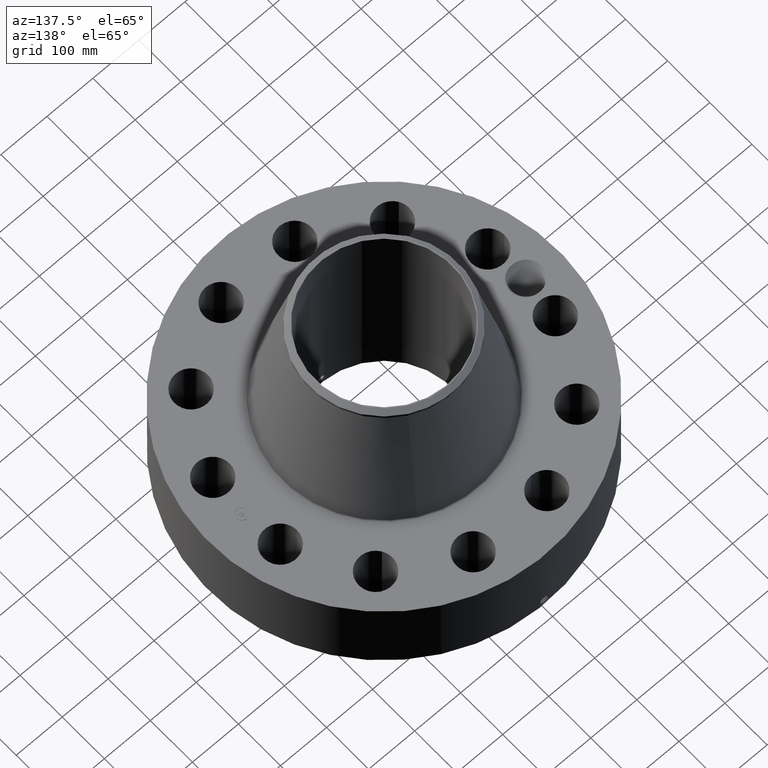
[diagram: clean part render]
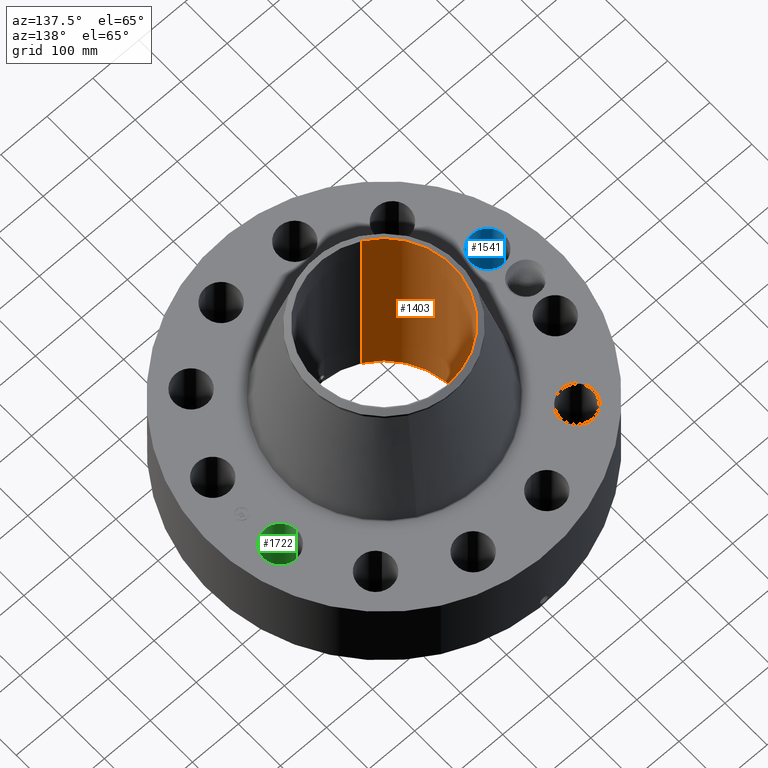
[diagram: same view with three faces highlighted in distinct colors, each labeled with its STEP entity id]
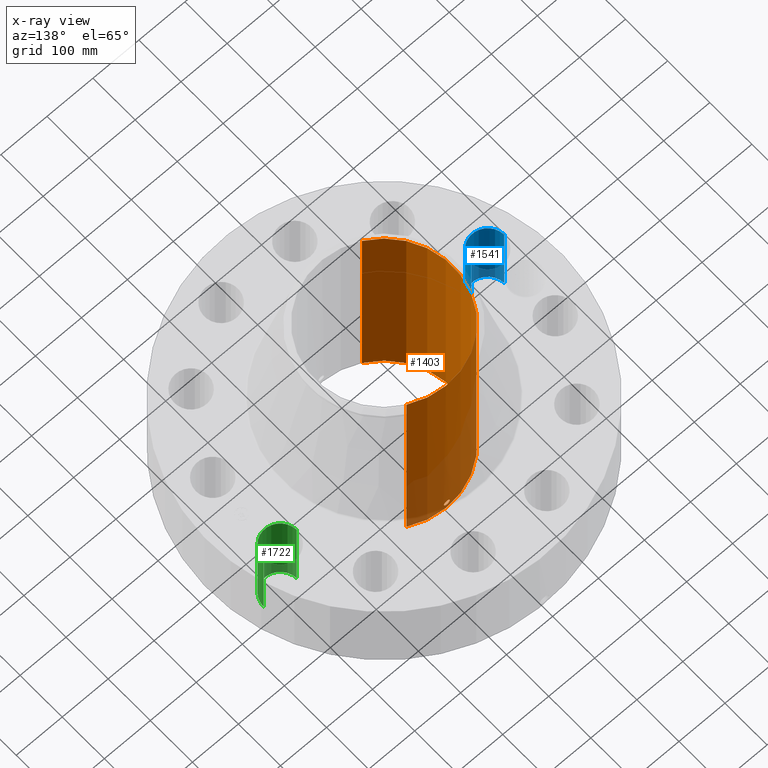
[diagram: x-ray of the same camera — body ghosted, the three highlighted faces saturated]
A machine part, auxiliary view with three faces highlighted in distinct colors.
The next image is the same camera in x-ray (body ghosted, the three faces saturated) — at least one of them is partly hidden behind the body in this view.
Their STEP definitions:

[orange] entity #1403 — the highlighted cylindrical surface (partial cylindrical patch) has radius 149.225 mm, axis along (0, 0, -1).
#269=AXIS2_PLACEMENT_3D('Circle Axis2P3D',#267,#268,$) ;
#1280=AXIS2_PLACEMENT_3D('Cylinder Axis2P3D',#1277,#1278,#1279) ;
#1352=AXIS2_PLACEMENT_3D('Circle Axis2P3D',#1350,#1351,$) ;
#262=CARTESIAN_POINT('Vertex',(2.81662503931,5.15579755113,0.250000000001)) ;
#264=CARTESIAN_POINT('Vertex',(-2.81662503931,-5.15579755113,0.250000000001)) ;
#267=CARTESIAN_POINT('Axis2P3D Location',(0.,0.,0.250000000001)) ;
#1277=CARTESIAN_POINT('Axis2P3D Location',(0.,0.,9.37500000004)) ;
#1286=CARTESIAN_POINT('Vertex',(2.81662503931,5.15579755113,18.5000000001)) ;
#1288=CARTESIAN_POINT('Vertex',(-2.81662503931,-5.15579755113,18.5000000001)) ;
#1291=CARTESIAN_POINT('Line Origine',(2.81662503931,5.15579755113,9.37500000004)) ;
#1296=CARTESIAN_POINT('Line Origine',(-2.81662503931,-5.15579755113,9.37500000004)) ;
#1350=CARTESIAN_POINT('Axis2P3D Location',(0.,0.,18.5000000001)) ;
#1362=CARTESIAN_POINT('Control Point',(0.219395640473,5.87090202211,1.05985638466)) ;
#1363=CARTESIAN_POINT('Control Point',(0.20692163943,5.8713681756,1.08268989041)) ;
#1364=CARTESIAN_POINT('Control Point',(0.191477831804,5.87191213486,1.10389937351)) ;
#1365=CARTESIAN_POINT('Control Point',(0.173344109102,5.87249188442,1.12297148438)) ;
#1366=CARTESIAN_POINT('Control Point',(0.112129100326,5.87416886917,1.17245435404)) ;
#1367=CARTESIAN_POINT('Control Point',(0.0349689357158,5.87525840237,1.19597659011)) ;
#1368=CARTESIAN_POINT('Control Point',(-0.01957401693,5.87533967008,1.19761228394)) ;
#1369=CARTESIAN_POINT('Control Point',(-0.124163451754,5.87414000251,1.17246288805)) ;
#1370=CARTESIAN_POINT('Control Point',(-0.203210766376,5.8716575904,1.09953550774)) ;
#1371=CARTESIAN_POINT('Control Point',(-0.232183300776,5.87043581406,1.05331149379)) ;
#1372=CARTESIAN_POINT('Control Point',(-0.255836021199,5.86943053012,0.975158850356)) ;
#1373=CARTESIAN_POINT('Control Point',(-0.248290732873,5.86975095003,0.895779407031)) ;
#1374=CARTESIAN_POINT('Control Point',(-0.24205676731,5.87001955897,0.86920417697)) ;
#1375=CARTESIAN_POINT('Control Point',(-0.232320363296,5.87041902515,0.843802161786)) ;
#1376=CARTESIAN_POINT('Control Point',(-0.219395640473,5.87090202211,0.820143615352)) ;
#1377=CARTESIAN_POINT('Vertex',(0.219395640473,5.87090202211,1.05985638466)) ;
#1379=CARTESIAN_POINT('Vertex',(-0.219395640473,5.87090202211,0.820143615352)) ;
#1383=CARTESIAN_POINT('Control Point',(-0.219395640473,5.87090202211,0.820143615352)) ;
#1384=CARTESIAN_POINT('Control Point',(-0.206921639423,5.8713681756,0.797310109588)) ;
#1385=CARTESIAN_POINT('Control Point',(-0.191477831785,5.87191213487,0.776100626468)) ;
#1386=CARTESIAN_POINT('Control Point',(-0.173344109128,5.87249188441,0.757028515654)) ;
#1387=CARTESIAN_POINT('Control Point',(-0.112129100348,5.87416886917,0.707545645976)) ;
#1388=CARTESIAN_POINT('Control Point',(-0.0349689357282,5.87525840237,0.684023409897)) ;
#1389=CARTESIAN_POINT('Control Point',(0.0195740169393,5.87533967008,0.682387716066)) ;
#1390=CARTESIAN_POINT('Control Point',(0.124163451772,5.87414000251,0.70753711197)) ;
#1391=CARTESIAN_POINT('Control Point',(0.2032107664,5.8716575904,0.78046449229)) ;
#1392=CARTESIAN_POINT('Control Point',(0.232183300766,5.87043581406,0.826688506179)) ;
#1393=CARTESIAN_POINT('Control Point',(0.255836021185,5.86943053012,0.904841149585)) ;
#1394=CARTESIAN_POINT('Control Point',(0.248290732882,5.86975095003,0.984220592877)) ;
#1395=CARTESIAN_POINT('Control Point',(0.242056767274,5.87001955897,1.01079582313)) ;
#1396=CARTESIAN_POINT('Control Point',(0.232320363273,5.87041902515,1.03619783826)) ;
#1397=CARTESIAN_POINT('Control Point',(0.219395640473,5.87090202211,1.05985638466)) ;
#268=DIRECTION('Axis2P3D Direction',(0.,0.,-0.0393700787402)) ;
#1278=DIRECTION('Axis2P3D Direction',(0.,0.,-0.0393700787402)) ;
#1279=DIRECTION('Axis2P3D XDirection',(-0.0188750212049,-0.0345504945626,0.)) ;
#1292=DIRECTION('Vector Direction',(0.,0.,-0.0393700787402)) ;
#1297=DIRECTION('Vector Direction',(0.,0.,-0.0393700787402)) ;
#1351=DIRECTION('Axis2P3D Direction',(0.,0.,-0.0393700787402)) ;
#1293=VECTOR('Line Direction',#1292,0.0393700787402) ;
#1298=VECTOR('Line Direction',#1297,0.0393700787402) ;
#1356=ORIENTED_EDGE('',*,*,#1354,.F.) ;
#1357=ORIENTED_EDGE('',*,*,#1300,.T.) ;
#1358=ORIENTED_EDGE('',*,*,#271,.T.) ;
#1359=ORIENTED_EDGE('',*,*,#1295,.F.) ;
#1400=ORIENTED_EDGE('',*,*,#1381,.F.) ;
#1401=ORIENTED_EDGE('',*,*,#1398,.F.) ;
#1402=FACE_BOUND('',#1399,.T.) ;
#1403=ADVANCED_FACE('PartBody',(#1360,#1402),#1281,.F.) ;
#1361=B_SPLINE_CURVE_WITH_KNOTS('',5,(#1362,#1363,#1364,#1365,#1366,#1367,#1368,#1369,#1370,#1371,#1372,#1373,#1374,#1375,#1376),.UNSPECIFIED.,.F.,.U.,(6,3,3,3,6),(0.,4.67383116857,14.0224065361,23.3724124437,28.2151226667),.UNSPECIFIED.) ;
#1382=B_SPLINE_CURVE_WITH_KNOTS('',5,(#1383,#1384,#1385,#1386,#1387,#1388,#1389,#1390,#1391,#1392,#1393,#1394,#1395,#1396,#1397),.UNSPECIFIED.,.F.,.U.,(6,3,3,3,6),(0.,4.67383117142,14.022406538,23.3724124485,28.2151226628),.UNSPECIFIED.) ;
#270=CIRCLE('generated circle',#269,5.87500000002) ;
#1353=CIRCLE('generated circle',#1352,5.87500000002) ;
#1281=CYLINDRICAL_SURFACE('generated cylinder',#1280,5.87500000002) ;
#271=EDGE_CURVE('',#265,#263,#270,.T.) ;
#1295=EDGE_CURVE('',#1287,#263,#1294,.T.) ;
#1300=EDGE_CURVE('',#1289,#265,#1299,.T.) ;
#1354=EDGE_CURVE('',#1289,#1287,#1353,.T.) ;
#1381=EDGE_CURVE('',#1378,#1380,#1361,.T.) ;
#1398=EDGE_CURVE('',#1380,#1378,#1382,.T.) ;
#1355=EDGE_LOOP('',(#1356,#1357,#1358,#1359)) ;
#1399=EDGE_LOOP('',(#1400,#1401)) ;
#1360=FACE_OUTER_BOUND('',#1355,.T.) ;
#1294=LINE('Line',#1291,#1293) ;
#1299=LINE('Line',#1296,#1298) ;
#263=VERTEX_POINT('',#262) ;
#265=VERTEX_POINT('',#264) ;
#1287=VERTEX_POINT('',#1286) ;
#1289=VERTEX_POINT('',#1288) ;
#1378=VERTEX_POINT('',#1377) ;
#1380=VERTEX_POINT('',#1379) ;

[blue] entity #1541 — the highlighted cylindrical surface (edge-blend (fillet) strip) has radius 36.576 mm, axis along (-0, 0, -1).
#350=AXIS2_PLACEMENT_3D('Circle Axis2P3D',#348,#349,$) ;
#766=AXIS2_PLACEMENT_3D('Circle Axis2P3D',#764,#765,$) ;
#1523=AXIS2_PLACEMENT_3D('Cylinder Axis2P3D',#1520,#1521,#1522) ;
#348=CARTESIAN_POINT('Axis2P3D Location',(-11.7746358225,-3.15500415981,0.250000000001)) ;
#352=CARTESIAN_POINT('Vertex',(-10.3350367735,-3.12102507699,0.250000000001)) ;
#354=CARTESIAN_POINT('Vertex',(-13.2142348715,-3.18898324263,0.250000000001)) ;
#759=CARTESIAN_POINT('Vertex',(-13.2142348715,-3.18898324263,7.50000000003)) ;
#761=CARTESIAN_POINT('Vertex',(-10.3350367735,-3.12102507699,7.50000000003)) ;
#764=CARTESIAN_POINT('Axis2P3D Location',(-11.7746358225,-3.15500415981,7.50000000003)) ;
#1520=CARTESIAN_POINT('Axis2P3D Location',(-11.7746358225,-3.15500415981,7.49606299216)) ;
#1525=CARTESIAN_POINT('Line Origine',(-10.3350367735,-3.12102507699,3.87500000002)) ;
#1530=CARTESIAN_POINT('Line Origine',(-13.2142348715,-3.18898324263,3.87500000002)) ;
#349=DIRECTION('Axis2P3D Direction',(0.,0.,-0.0393700787402)) ;
#765=DIRECTION('Axis2P3D Direction',(0.,0.,-0.0393700787402)) ;
#1521=DIRECTION('Axis2P3D Direction',(-0.,0.,-0.0393700787402)) ;
#1522=DIRECTION('Axis2P3D XDirection',(-0.039359116607,-0.000928999420902,0.)) ;
#1526=DIRECTION('Vector Direction',(0.,0.,-0.0393700787402)) ;
#1531=DIRECTION('Vector Direction',(0.,0.,-0.0393700787402)) ;
#1527=VECTOR('Line Direction',#1526,0.0393700787402) ;
#1532=VECTOR('Line Direction',#1531,0.0393700787402) ;
#1536=ORIENTED_EDGE('',*,*,#1529,.F.) ;
#1537=ORIENTED_EDGE('',*,*,#356,.T.) ;
#1538=ORIENTED_EDGE('',*,*,#1534,.T.) ;
#1539=ORIENTED_EDGE('',*,*,#768,.F.) ;
#1541=ADVANCED_FACE('PartBody',(#1540),#1524,.F.) ;
#351=CIRCLE('generated circle',#350,1.44000000001) ;
#767=CIRCLE('generated circle',#766,1.44000000001) ;
#1524=CYLINDRICAL_SURFACE('generated cylinder',#1523,1.44000000001) ;
#356=EDGE_CURVE('',#353,#355,#351,.T.) ;
#768=EDGE_CURVE('',#762,#760,#767,.T.) ;
#1529=EDGE_CURVE('',#353,#762,#1528,.F.) ;
#1534=EDGE_CURVE('',#355,#760,#1533,.F.) ;
#1535=EDGE_LOOP('',(#1536,#1537,#1538,#1539)) ;
#1540=FACE_OUTER_BOUND('',#1535,.T.) ;
#1528=LINE('Line',#1525,#1527) ;
#1533=LINE('Line',#1530,#1532) ;
#353=VERTEX_POINT('',#352) ;
#355=VERTEX_POINT('',#354) ;
#760=VERTEX_POINT('',#759) ;
#762=VERTEX_POINT('',#761) ;

[green] entity #1722 — the highlighted cylindrical surface (edge-blend (fillet) strip) has radius 36.576 mm, axis along (0, 0, -1).
#467=AXIS2_PLACEMENT_3D('Circle Axis2P3D',#465,#466,$) ;
#865=AXIS2_PLACEMENT_3D('Circle Axis2P3D',#863,#864,$) ;
#1697=AXIS2_PLACEMENT_3D('Cylinder Axis2P3D',#1694,#1695,#1696) ;
#460=CARTESIAN_POINT('Vertex',(10.3350367735,3.12102507699,0.250000000001)) ;
#462=CARTESIAN_POINT('Vertex',(13.2142348715,3.18898324263,0.250000000001)) ;
#465=CARTESIAN_POINT('Axis2P3D Location',(11.7746358225,3.15500415981,0.250000000001)) ;
#863=CARTESIAN_POINT('Axis2P3D Location',(11.7746358225,3.15500415981,7.50000000003)) ;
#867=CARTESIAN_POINT('Vertex',(13.2142348715,3.18898324263,7.50000000003)) ;
#869=CARTESIAN_POINT('Vertex',(10.3350367735,3.12102507699,7.50000000003)) ;
#1694=CARTESIAN_POINT('Axis2P3D Location',(11.7746358225,3.15500415981,7.49606299216)) ;
#1699=CARTESIAN_POINT('Line Origine',(10.3350367735,3.12102507699,3.87500000002)) ;
#1704=CARTESIAN_POINT('Line Origine',(13.2142348715,3.18898324263,3.87500000002)) ;
#466=DIRECTION('Axis2P3D Direction',(0.,0.,-0.0393700787402)) ;
#864=DIRECTION('Axis2P3D Direction',(0.,0.,-0.0393700787402)) ;
#1695=DIRECTION('Axis2P3D Direction',(0.,0.,-0.0393700787402)) ;
#1696=DIRECTION('Axis2P3D XDirection',(0.039359116607,0.000928999420902,0.)) ;
#1700=DIRECTION('Vector Direction',(0.,0.,-0.0393700787402)) ;
#1705=DIRECTION('Vector Direction',(0.,0.,-0.0393700787402)) ;
#1701=VECTOR('Line Direction',#1700,0.0393700787402) ;
#1706=VECTOR('Line Direction',#1705,0.0393700787402) ;
#1717=ORIENTED_EDGE('',*,*,#1708,.F.) ;
#1718=ORIENTED_EDGE('',*,*,#469,.T.) ;
#1719=ORIENTED_EDGE('',*,*,#1703,.T.) ;
#1720=ORIENTED_EDGE('',*,*,#871,.F.) ;
#1722=ADVANCED_FACE('PartBody',(#1721),#1698,.F.) ;
#468=CIRCLE('generated circle',#467,1.44000000001) ;
#866=CIRCLE('generated circle',#865,1.44000000001) ;
#1698=CYLINDRICAL_SURFACE('generated cylinder',#1697,1.44000000001) ;
#469=EDGE_CURVE('',#463,#461,#468,.T.) ;
#871=EDGE_CURVE('',#868,#870,#866,.T.) ;
#1703=EDGE_CURVE('',#461,#870,#1702,.F.) ;
#1708=EDGE_CURVE('',#463,#868,#1707,.F.) ;
#1716=EDGE_LOOP('',(#1717,#1718,#1719,#1720)) ;
#1721=FACE_OUTER_BOUND('',#1716,.T.) ;
#1702=LINE('Line',#1699,#1701) ;
#1707=LINE('Line',#1704,#1706) ;
#461=VERTEX_POINT('',#460) ;
#463=VERTEX_POINT('',#462) ;
#868=VERTEX_POINT('',#867) ;
#870=VERTEX_POINT('',#869) ;